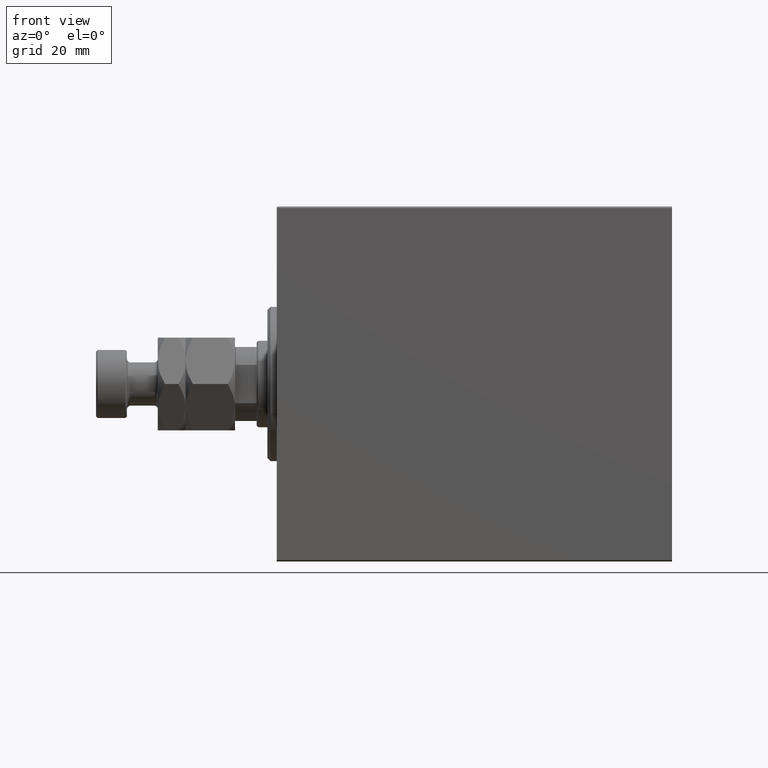
[diagram: clean part render]
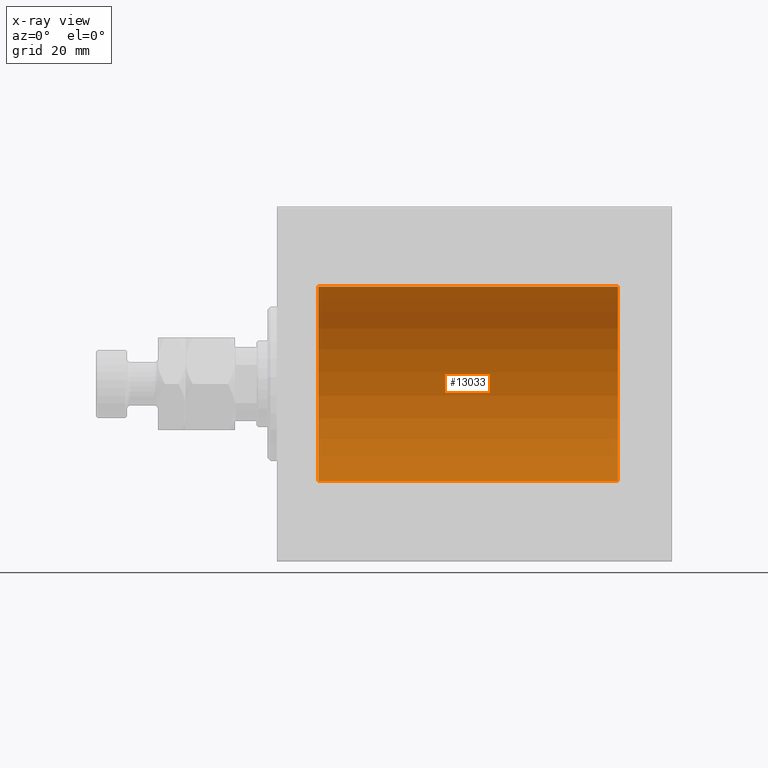
[diagram: x-ray — body ghosted, one internal face saturated and labeled with its STEP entity id]
A machine part, front view, then the same camera in x-ray: the body is ghosted and one INTERNAL B-rep face — a face not visible from any outside direction — is saturated and labeled: STEP entity #13033.
In plain terms, the highlighted cylindrical surface (partial cylindrical patch) has radius 31.5 mm, axis along (-1, -0, -0).
Its self-contained STEP definition (entity closure, byte-faithful):
#763 = FACE_OUTER_BOUND ( 'NONE', #35188, .T. ) ;
#1217 = DIRECTION ( 'NONE',  ( 0.000000000000000000, 0.000000000000000000, 1.000000000000000000 ) ) ;
#1440 = CYLINDRICAL_SURFACE ( 'NONE', #33940, 31.50000000000000000 ) ;
#1700 = ORIENTED_EDGE ( 'NONE', *, *, #3848, .T. ) ;
#3848 = EDGE_CURVE ( 'NONE', #35685, #16354, #27911, .T. ) ;
#6088 = VECTOR ( 'NONE', #24501, 1000.000000000000000 ) ;
#6873 = EDGE_CURVE ( 'NONE', #16983, #34991, #36800, .T. ) ;
#7952 = DIRECTION ( 'NONE',  ( -1.000000000000000000, 0.000000000000000000, 0.000000000000000000 ) ) ;
#8082 = AXIS2_PLACEMENT_3D ( 'NONE', #41148, #34048, #17054 ) ;
#8325 = ORIENTED_EDGE ( 'NONE', *, *, #14707, .F. ) ;
#10947 = DIRECTION ( 'NONE',  ( 0.000000000000000000, 0.000000000000000000, 1.000000000000000000 ) ) ;
#11616 = CARTESIAN_POINT ( 'NONE',  ( 110.5000000000000000, 0.000000000000000000, 0.000000000000000000 ) ) ;
#13033 = ADVANCED_FACE ( 'NONE', ( #763 ), #1440, .F. ) ;
#14707 = EDGE_CURVE ( 'NONE', #34991, #16354, #32282, .T. ) ;
#15045 = CARTESIAN_POINT ( 'NONE',  ( 110.5000000000000000, 0.000000000000000000, 0.000000000000000000 ) ) ;
#16354 = VERTEX_POINT ( 'NONE', #44059 ) ;
#16983 = VERTEX_POINT ( 'NONE', #22607 ) ;
#17054 = DIRECTION ( 'NONE',  ( 0.000000000000000000, 0.000000000000000000, 1.000000000000000000 ) ) ;
#19581 = CARTESIAN_POINT ( 'NONE',  ( 13.49999999999999822, 0.000000000000000000, 31.50000000000000000 ) ) ;
#22607 = CARTESIAN_POINT ( 'NONE',  ( 110.5000000000000000, 0.000000000000000000, 31.50000000000000000 ) ) ;
#24501 = DIRECTION ( 'NONE',  ( -1.000000000000000000, -0.000000000000000000, -0.000000000000000000 ) ) ;
#25344 = LINE ( 'NONE', #36348, #44015 ) ;
#25645 = ORIENTED_EDGE ( 'NONE', *, *, #6873, .F. ) ;
#26023 = DIRECTION ( 'NONE',  ( -1.000000000000000000, -0.000000000000000000, -0.000000000000000000 ) ) ;
#27911 = CIRCLE ( 'NONE', #8082, 31.50000000000000000 ) ;
#29930 = EDGE_CURVE ( 'NONE', #16983, #35685, #25344, .T. ) ;
#30347 = CARTESIAN_POINT ( 'NONE',  ( 110.5000000000000000, 3.857637417314162689E-15, -31.50000000000000000 ) ) ;
#32282 = LINE ( 'NONE', #39173, #6088 ) ;
#33940 = AXIS2_PLACEMENT_3D ( 'NONE', #15045, #36384, #1217 ) ;
#34048 = DIRECTION ( 'NONE',  ( -1.000000000000000000, 0.000000000000000000, 0.000000000000000000 ) ) ;
#34991 = VERTEX_POINT ( 'NONE', #30347 ) ;
#35188 = EDGE_LOOP ( 'NONE', ( #8325, #25645, #41884, #1700 ) ) ;
#35685 = VERTEX_POINT ( 'NONE', #19581 ) ;
#36348 = CARTESIAN_POINT ( 'NONE',  ( 110.5000000000000000, 0.000000000000000000, 31.50000000000000000 ) ) ;
#36384 = DIRECTION ( 'NONE',  ( -1.000000000000000000, -0.000000000000000000, -0.000000000000000000 ) ) ;
#36800 = CIRCLE ( 'NONE', #38297, 31.50000000000000000 ) ;
#38297 = AXIS2_PLACEMENT_3D ( 'NONE', #11616, #7952, #10947 ) ;
#39173 = CARTESIAN_POINT ( 'NONE',  ( 110.5000000000000000, 3.857637417314162689E-15, -31.50000000000000000 ) ) ;
#41148 = CARTESIAN_POINT ( 'NONE',  ( 13.49999999999999822, 0.000000000000000000, 0.000000000000000000 ) ) ;
#41884 = ORIENTED_EDGE ( 'NONE', *, *, #29930, .T. ) ;
#44015 = VECTOR ( 'NONE', #26023, 1000.000000000000000 ) ;
#44059 = CARTESIAN_POINT ( 'NONE',  ( 13.49999999999999822, 3.857637417314162689E-15, -31.50000000000000000 ) ) ;